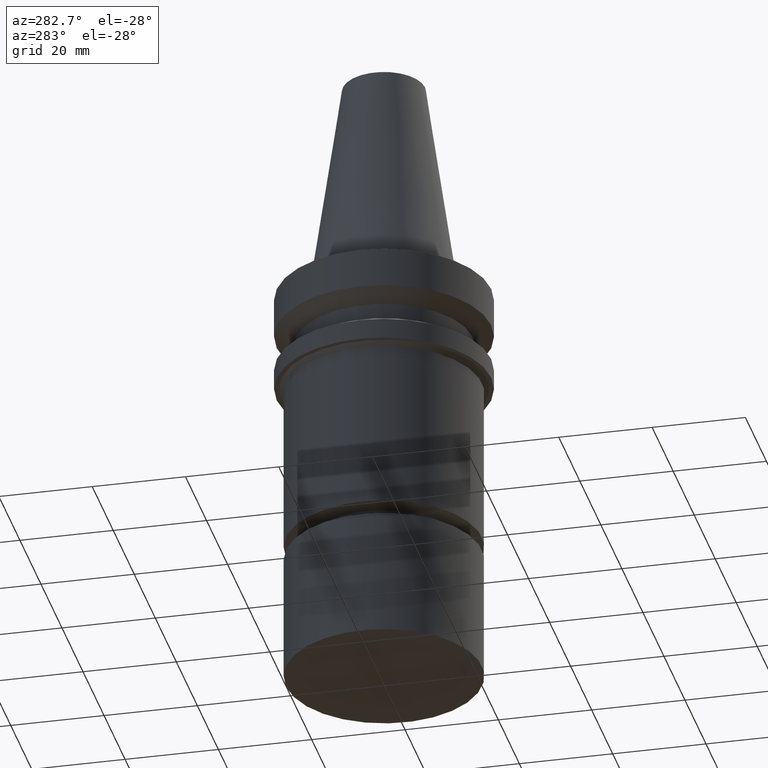
[diagram: clean part render]
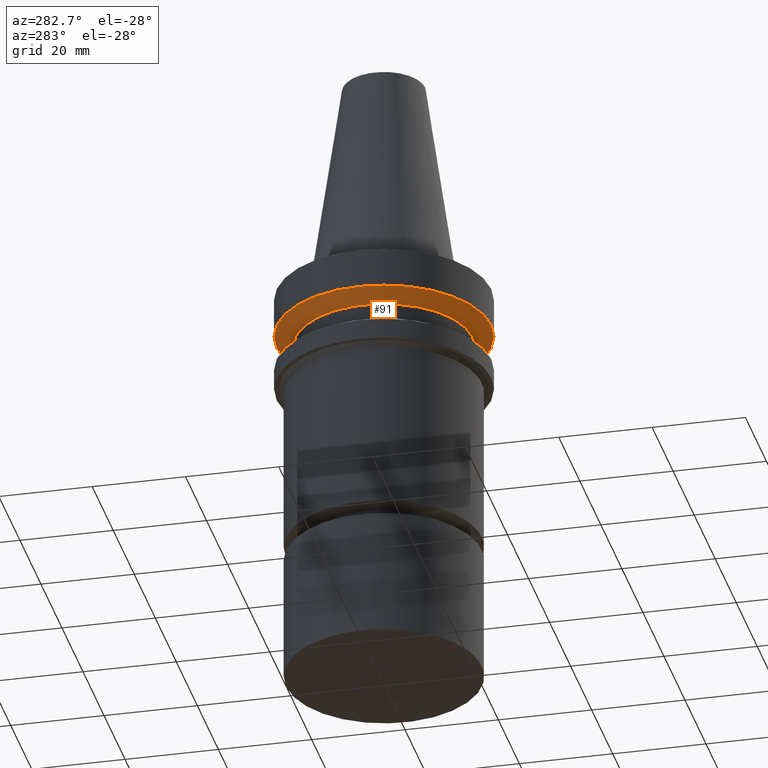
[diagram: same view with one face highlighted and labeled with its STEP entity id]
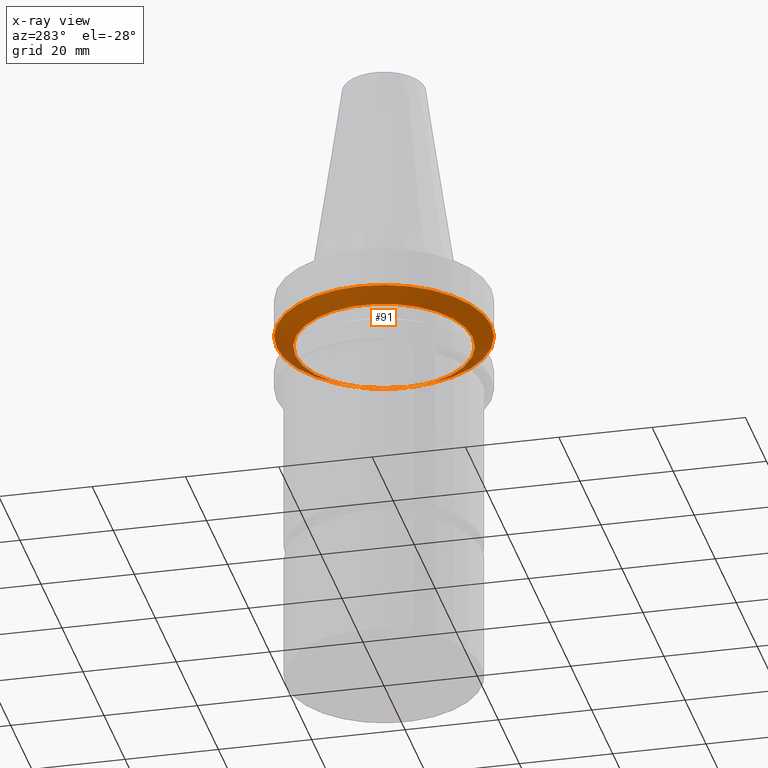
[diagram: x-ray of the same camera — body ghosted, the highlighted face saturated]
A machine part, auxiliary view. The second image highlights one B-rep face of the part: STEP entity #91.
The next image is the same camera in x-ray: the body ghosted, the highlighted face saturated — about 11% of this face is hidden behind the body in this view.
In plain terms, the highlighted conical surface has half-angle 60 deg.
Its self-contained STEP definition (entity closure, byte-faithful):
#91=ADVANCED_FACE('Unnamed[1]',(#226,#227),#228,.T.);
#124=EDGE_CURVE('Unnamed[1]',#276,#276,#277,.T.);
#157=EDGE_CURVE('Unnamed[1]',#325,#325,#326,.T.);
#226=FACE_BOUND('',#408,.T.);
#227=FACE_BOUND('',#409,.T.);
#228=CONICAL_SURFACE('',#410,21.0,1.04719755058881);
#276=VERTEX_POINT('',#470);
#277=CIRCLE('',#471,23.0);
#325=VERTEX_POINT('',#531);
#326=CIRCLE('',#532,19.0);
#408=EDGE_LOOP('',(#608));
#409=EDGE_LOOP('',(#609));
#410=AXIS2_PLACEMENT_3D('',#610,#611,#612);
#470=CARTESIAN_POINT('',(5.87830463590729E-016,23.0,-9.59999999999999));
#471=AXIS2_PLACEMENT_3D('',#663,#664,#665);
#531=CARTESIAN_POINT('',(7.29240495619202E-016,19.0,-11.90940108));
#532=AXIS2_PLACEMENT_3D('',#716,#717,#718);
#608=ORIENTED_EDGE('',*,*,#157,.F.);
#609=ORIENTED_EDGE('',*,*,#124,.T.);
#610=CARTESIAN_POINT('',(6.58535479604966E-016,1.31707095920993E-015,-10.75470054));
#611=DIRECTION('',(-6.12323399573677E-017,-1.2246467991477E-016,1.0));
#612=DIRECTION('',(-1.23259516440783E-032,1.0,1.2246467991477E-016));
#663=CARTESIAN_POINT('',(5.87830463590729E-016,1.17566092718146E-015,-9.59999999999999));
#664=DIRECTION('',(6.12323399573677E-017,1.22464679914716E-016,-1.0));
#665=DIRECTION('',(-1.23259516440783E-032,1.0,1.22464679914716E-016));
#716=CARTESIAN_POINT('',(7.29240495619202E-016,1.4584809912384E-015,-11.90940108));
#717=DIRECTION('',(6.12323399573677E-017,1.22464679914665E-016,-1.0));
#718=DIRECTION('',(-1.23259516440783E-032,1.0,1.22464679914665E-016));